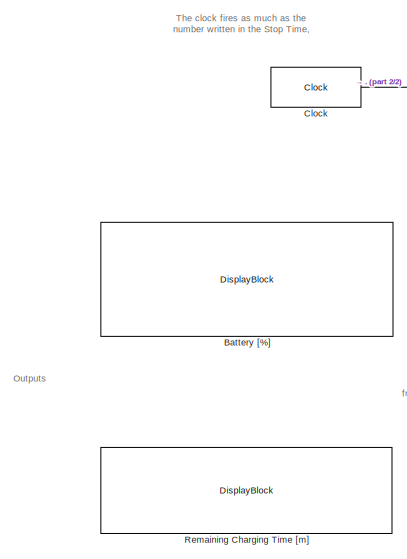
[diagram: root canvas - part 1/2, left side, full height]
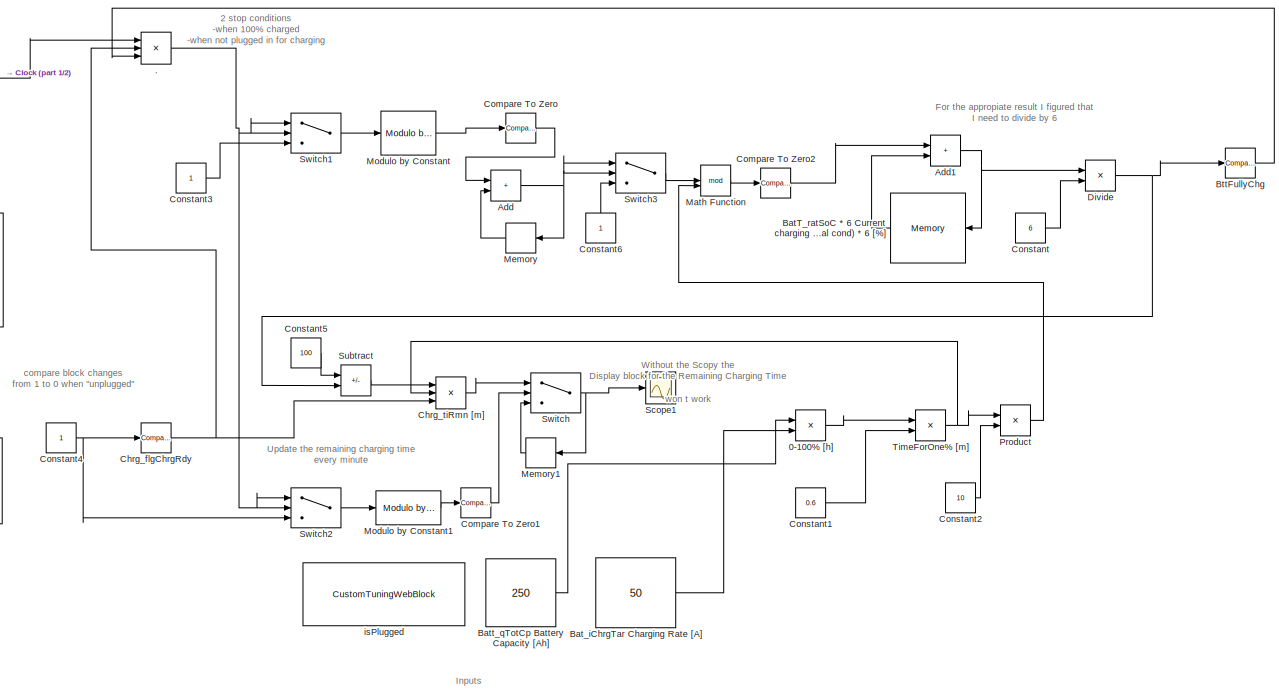
[diagram: root canvas - part 2/2, most of the canvas]
MODEL slx_4418b8fef634
KIND model
CONFIG AbsTol = auto
CONFIG EnableMultiTasking = off
CONFIG FixedStep = 1
CONFIG MaxStep = auto
CONFIG MinStep = auto
CONFIG RelTol = 1e-3
CONFIG SampleTimeConstraint = Unconstrained
CONFIG SolverName = FixedStepAuto
CONFIG StartTime = 0.0
CONFIG StopTime = 16000
BLOCK [Product] .
  Inputs = 3
BLOCK [Product] 0-100% [h]
  Inputs = */
BLOCK [Sum] Add
  IconShape = rectangular
BLOCK [Sum] Add1
  IconShape = rectangular
  OutDataTypeStr = uint32
BLOCK [Memory] BatT_ratSoC  *  6 Current charging % when plugged(initial cond)  *  6 [%]
BLOCK [Constant] Bat_iChrgTar Charging Rate [A]
  Value = 50
BLOCK [Constant] Batt_qTotCp Battery Capacity [Ah]
  Value = 250
BLOCK [DisplayBlock] Battery [%]
  LabelPosition = Hide
  Transparency = 1
BLOCK [Reference] BttFullyChg   REF=simulink/Logic and Bit
Operations/Compare
To Constant
  SourceBlock = simulink/Logic and Bit\nOperations/Compare\nTo Constant
  SourceType = Compare To Constant
BLOCK [Reference] Chrg_flgChrgRdy  REF=simulink/Logic and Bit
Operations/Compare
To Constant
  SourceBlock = simulink/Logic and Bit\nOperations/Compare\nTo Constant
  SourceType = Compare To Constant
BLOCK [Product] Chrg_tiRmn [m]
  Inputs = 3
BLOCK [Clock] Clock
  Decimation = 1
  DisplayTime = on
BLOCK [Reference] Compare To Zero  REF=simulink/Logic and Bit
Operations/Compare
To Zero
  SourceBlock = simulink/Logic and Bit\nOperations/Compare\nTo Zero
  SourceType = Compare To Zero
BLOCK [Reference] Compare To Zero1  REF=simulink/Logic and Bit
Operations/Compare
To Zero
  SourceBlock = simulink/Logic and Bit\nOperations/Compare\nTo Zero
  SourceType = Compare To Zero
BLOCK [Reference] Compare To Zero2  REF=simulink/Logic and Bit
Operations/Compare
To Zero
  SourceBlock = simulink/Logic and Bit\nOperations/Compare\nTo Zero
  SourceType = Compare To Zero
BLOCK [Constant] Constant
  Value = 6
BLOCK [Constant] Constant1
  Value = 0.6
BLOCK [Constant] Constant2
  Value = 10
BLOCK [Constant] Constant3
BLOCK [Constant] Constant4
BLOCK [Constant] Constant5
  Value = 100
BLOCK [Constant] Constant6
  NameLocation = right
BLOCK [Product] Divide
  Inputs = */
BLOCK [Math] Math Function
  Operator = mod
BLOCK [Memory] Memory
BLOCK [Memory] Memory1
BLOCK [Reference] Modulo by Constant  REF=embmathops/Modulo by Constant
  LibrarySourceBlock = embeddedMathLib/Modulo by Constant
  SourceBlock = embmathops/Modulo by Constant
  SourceType = fixed.system.ModByConstant
BLOCK [Reference] Modulo by Constant1  REF=embmathops/Modulo by Constant
  LibrarySourceBlock = embeddedMathLib/Modulo by Constant
  SourceBlock = embmathops/Modulo by Constant
  SourceType = fixed.system.ModByConstant
BLOCK [Product] Product
BLOCK [DisplayBlock] Remaining Charging Time [m]
  LabelPosition = Hide
  Transparency = 1
BLOCK [Scope] Scope1
  Floating = off
  NumInputPorts = 1
  ScopeSpecificationString = Simulink.scopes.TimeScopeBlockCfg('CurrentConfiguration', extmgr.ConfigurationSet(extmgr.Configuration('Core','General UI',true),extmgr.Configuration('Core','Source UI',true),extmgr.Configuration('Sources','WiredSimulink',true,'DataLoggingVariableName','ScopeData1'),extmgr.Configuration('Visuals','Time Domain',true,'SerializedDisplays',{struct('MinYLimReal','-37.5','MaxYLimReal','337.5','YLabelRea...<+1440ch>
BLOCK [Sum] Subtract
  IconShape = rectangular
  Inputs = +-
BLOCK [Switch] Switch
  Criteria = u2 ~= 0
  InputSameDT = off
  SaturateOnIntegerOverflow = off
BLOCK [Switch] Switch1
  Criteria = u2 ~= 0
  InputSameDT = off
  SaturateOnIntegerOverflow = off
BLOCK [Switch] Switch2
  Criteria = u2 ~= 0
  InputSameDT = off
  SaturateOnIntegerOverflow = off
BLOCK [Switch] Switch3
  Criteria = u2 ~= 0
  InputSameDT = off
  SaturateOnIntegerOverflow = off
BLOCK [Product] TimeForOne% [m]
BLOCK [CustomTuningWebBlock] isPlugged
  Configuration = {"components":[{"name":"CustomSwitchStateComponent","settings":{"position":[0,0,1,1],"states":[{"HitRegion":{"position":[0,0,0.5,1]},"Image":{"position":[0,0,1,1],"size":[1,1],"src":"data:image\/svg+xml;base64,PD94bWwgdmVyc2lvbj0iMS4wIiBlbmNvZGluZz0idXRmLTgiPz4NCjwhLS0gR2VuZXJhdG9yOiBBZG9iZSBJbGx1c3RyYXRvciAyNS4yLjEsIFNWRyBFeHBvcnQgUGx1Zy1JbiAuIFNWRyBWZXJzaW9uOiA2LjAwIEJ1aWxkIDApICAtLT4NCjxzdmcgdm...<+12682ch>
  LabelPosition = Hide
  ShowInitialText = on
ANNOTATION (root): 2 stop conditions -when 100% charged -when not plugged in for charging
ANNOTATION (root): Inputs
ANNOTATION (root): Outputs
ANNOTATION (root): For the appropiate result I figured that I need to divide by 6
ANNOTATION (root): The clock fires as much as the number written in the Stop Time,
ANNOTATION (root): Update the remaining charging time every minute
ANNOTATION (root): Without the Scopy the Display block for the Remaining Charging Time won t work
ANNOTATION (root): compare block changes from 1 to 0 when "unplugged"
NET .:1 -> Switch1:1, Switch1:2, Switch2:1, Switch2:2
LINE 0-100% [h]:1 -> TimeForOne% [m]:1
NET Add1:1 -> BatT_ratSoC  *  6 Current charging % when plugged(initial cond)  *  6 [%]:1, Divide:1
NET Add:1 -> Memory:1, Switch3:1, Switch3:2
LINE BatT_ratSoC  *  6 Current charging % when plugged(initial cond)  *  6 [%]:1 -> Add1:2
LINE Bat_iChrgTar Charging Rate [A]:1 -> 0-100% [h]:2
LINE Batt_qTotCp Battery Capacity [Ah]:1 -> 0-100% [h]:1
LINE BttFullyChg :1 -> .:3
NET Chrg_flgChrgRdy:1 -> .:2, Chrg_tiRmn [m]:3
LINE Chrg_tiRmn [m]:1 -> Switch:1
LINE Clock:1 -> .:1
LINE Compare To Zero1:1 -> Switch:2
LINE Compare To Zero2:1 -> Add1:1
LINE Compare To Zero:1 -> Add:1
LINE Constant1:1 -> TimeForOne% [m]:2
LINE Constant2:1 -> Product:2
LINE Constant3:1 -> Switch1:3
NET Constant4:1 -> Chrg_flgChrgRdy:1, Switch2:3
LINE Constant5:1 -> Subtract:1
LINE Constant6:1 -> Switch3:3
LINE Constant:1 -> Divide:2
NET Divide:1 -> BttFullyChg :1, Subtract:2
LINE Math Function:1 -> Compare To Zero2:1
LINE Memory1:1 -> Switch:3
LINE Memory:1 -> Add:2
LINE Modulo by Constant1:1 -> Compare To Zero1:1
LINE Modulo by Constant:1 -> Compare To Zero:1
LINE Product:1 -> Math Function:2
LINE Subtract:1 -> Chrg_tiRmn [m]:1
LINE Switch1:1 -> Modulo by Constant:1
LINE Switch2:1 -> Modulo by Constant1:1
LINE Switch3:1 -> Math Function:1
NET Switch:1 -> Memory1:1, Scope1:1
NET TimeForOne% [m]:1 -> Chrg_tiRmn [m]:2, Product:1
note: NET lines group one-source signal fan-out (src -> all destinations, sorted); 1:1 wires keep LINE
